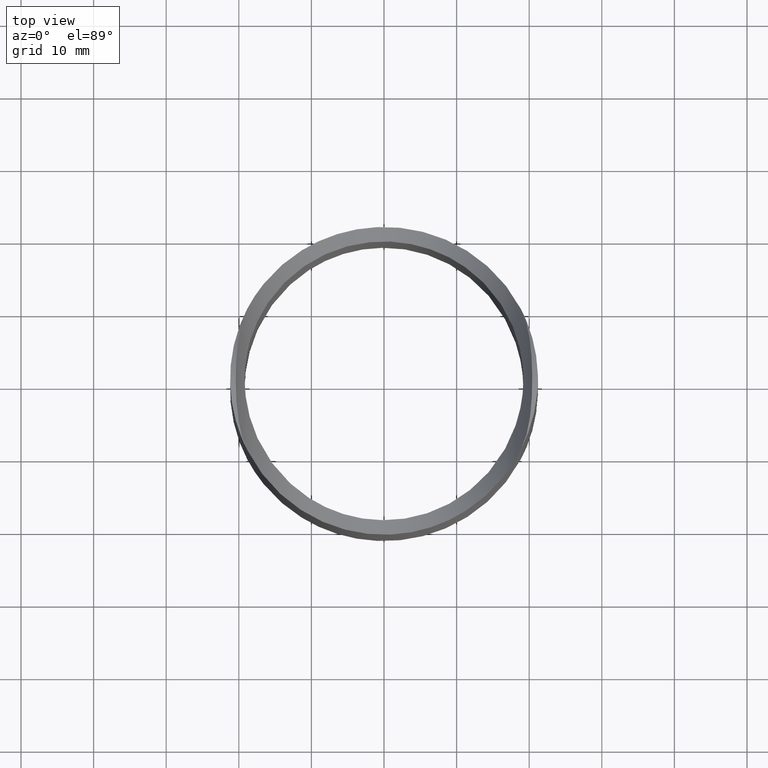
[diagram: clean part render]
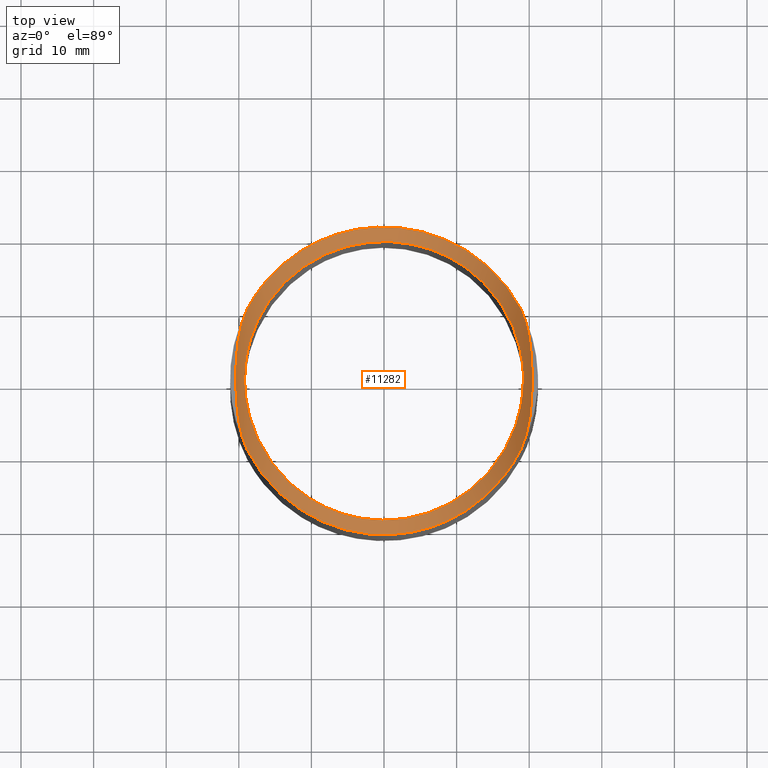
[diagram: same view with one face highlighted and labeled with its STEP entity id]
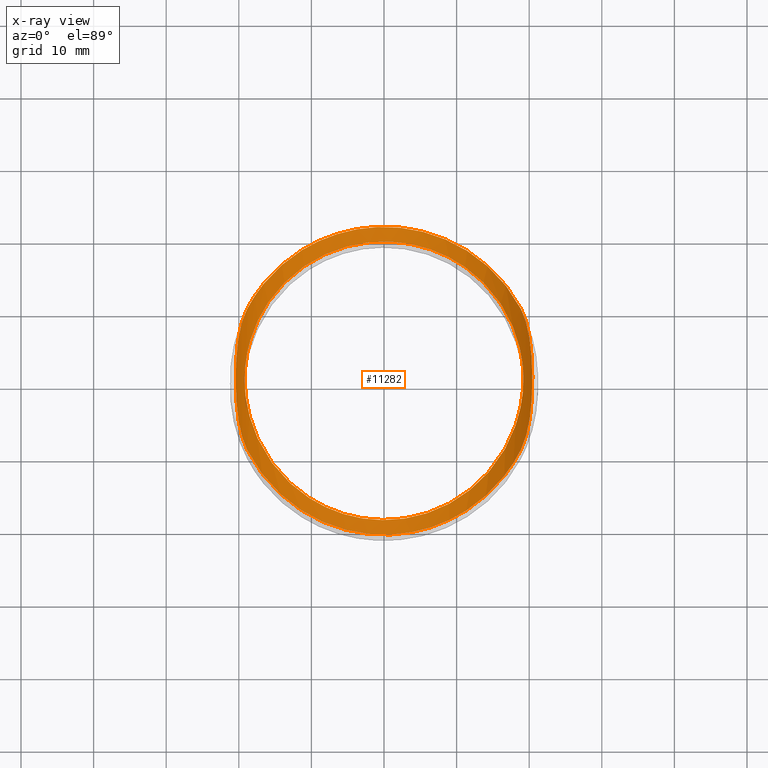
[diagram: x-ray of the same camera — body ghosted, the highlighted face saturated]
A machine part, top view. The second image highlights one B-rep face of the part: STEP entity #11282.
The next image is the same camera in x-ray: the body ghosted, the highlighted face saturated — about 0% of this face is hidden behind the body in this view.
In plain terms, the highlighted cylindrical surface (partial cylindrical patch) has radius 21.2 mm, axis along (-0, 1, -0).
Its self-contained STEP definition (entity closure, byte-faithful):
#275 = CARTESIAN_POINT ( 'NONE',  ( 19.71056696866369151, 7.336897052057295809, 38.38939420894264032 ) ) ;
#337 = CARTESIAN_POINT ( 'NONE',  ( 19.20000000000000284, 0.000000000000000000, 37.21111797830232604 ) ) ;
#381 = CARTESIAN_POINT ( 'NONE',  ( 17.19296700203068795, -8.566131912015483962, 33.78834553073281910 ) ) ;
#407 = EDGE_LOOP ( 'NONE', ( #3960 ) ) ;
#427 = CARTESIAN_POINT ( 'NONE',  ( 17.91115840603067255, -6.941481756126495206, 34.85067736368570479 ) ) ;
#507 = CARTESIAN_POINT ( 'NONE',  ( -15.67803153170230246, -11.09847307753546630, 31.92139895677011197 ) ) ;
#548 = CARTESIAN_POINT ( 'NONE',  ( 10.64677686720037286, -15.98933728070450044, 27.85803417098272305 ) ) ;
#599 = CARTESIAN_POINT ( 'NONE',  ( 0.7433319518265338877, -19.19778070975139528, 25.00200992153247981 ) ) ;
#642 = CARTESIAN_POINT ( 'NONE',  ( -18.63179064665984086, -4.680354246637869586, 36.08166199968749766 ) ) ;
#687 = CARTESIAN_POINT ( 'NONE',  ( 15.34714830805693708, 11.55184783462138753, 31.56542461268523070 ) ) ;
#730 = CARTESIAN_POINT ( 'NONE',  ( 19.19999999999999574, 0.3490227224017047325, 37.21111797830232604 ) ) ;
#745 = CARTESIAN_POINT ( 'NONE',  ( -18.99142785206602113, 9.427715610654040290, 36.77228438934596966 ) ) ;
#782 = CARTESIAN_POINT ( 'NONE',  ( 18.10457226352765403, 6.421706227417328883, 35.16370882187908364 ) ) ;
#793 = CARTESIAN_POINT ( 'NONE',  ( -20.20840888386870660, 4.483300682589212549, 39.78129634034976192 ) ) ;
#824 = CARTESIAN_POINT ( 'NONE',  ( 10.06396289217453521, 16.36321880414065433, 27.53096403281191584 ) ) ;
#836 = CARTESIAN_POINT ( 'NONE',  ( -19.96023696848529028, -6.159350922172873055, 39.05286593428640174 ) ) ;
#871 = CARTESIAN_POINT ( 'NONE',  ( 7.208878613172669425, 17.79834022154434336, 26.26063975332181855 ) ) ;
#885 = VERTEX_POINT ( 'NONE', #3470 ) ;
#936 = CARTESIAN_POINT ( 'NONE',  ( -20.02854671388581309, -5.752880836942012799, 39.24791982289676895 ) ) ;
#1020 = CARTESIAN_POINT ( 'NONE',  ( -20.14661404502265185, -4.921180317762946288, 39.59787573730439902 ) ) ;
#1050 = B_SPLINE_CURVE_WITH_KNOTS ( 'NONE', 3,
 ( #11966, #5555, #5605, #7549, #1243, #2346, #9645, #10707, #12933, #12842, #6559, #6644, #1390, #2482, #7593, #2390, #3518, #12885, #11918, #6603, #1297, #8642, #275, #9695, #3428, #4471, #11066, #13191 ),
 .UNSPECIFIED., .F., .F.,
 ( 4, 2, 2, 2, 2, 2, 2, 2, 2, 2, 2, 2, 2, 4 ),
 ( 0.02396826204392869808, 0.02668679620115640277, 0.02804606327977025512, 0.02940533035838410747, 0.03212386451561180523, 0.03348313159422565410, 0.03484239867283949604, 0.03620166575145334492, 0.03756093283006718686, 0.04027946698729487074, 0.04163873406590871962, 0.04299800114452255462, 0.04435726822313639656, 0.04571653530175023850 ),
 .UNSPECIFIED. ) ;
#1092 = CARTESIAN_POINT ( 'NONE',  ( 18.83499937240519273, 9.730508652763015576, 36.46949134723699615 ) ) ;
#1243 = CARTESIAN_POINT ( 'NONE',  ( 19.80042045556458419, -6.955732664400975374, 38.62130685013785580 ) ) ;
#1269 = DIRECTION ( 'NONE',  ( 0.000000000000000000, 0.000000000000000000, 1.000000000000000000 ) ) ;
#1297 = CARTESIAN_POINT ( 'NONE',  ( 19.96003588648376237, 6.160517473762729956, 39.05229638140252746 ) ) ;
#1320 = CARTESIAN_POINT ( 'NONE',  ( -6.888638245203861550E-15, -21.19999999999999929, 46.19999999999999574 ) ) ;
#1390 = CARTESIAN_POINT ( 'NONE',  ( 20.41935579464661998, -0.4553107481924930644, 40.50000798845297112 ) ) ;
#1535 = CARTESIAN_POINT ( 'NONE',  ( -18.91461802903754474, 3.314564675375174740, 36.62448624184041535 ) ) ;
#1579 = CARTESIAN_POINT ( 'NONE',  ( -18.09347301264858388, -6.452912811912915991, 35.14547507224334311 ) ) ;
#1624 = CARTESIAN_POINT ( 'NONE',  ( 12.11583388925274463, -14.90660930377096705, 28.79413393938108001 ) ) ;
#1666 = CARTESIAN_POINT ( 'NONE',  ( -10.58062860615426182, -16.03342596783360818, 27.81959257838934363 ) ) ;
#1706 = CARTESIAN_POINT ( 'NONE',  ( -19.19273037613744748, 0.6313044509750561639, 37.19551227889626688 ) ) ;
#1757 = CARTESIAN_POINT ( 'NONE',  ( -16.65739973868151225, 9.566076196768829476, 33.07829986478184026 ) ) ;
#1802 = CARTESIAN_POINT ( 'NONE',  ( 6.593138562901279975, 18.03550302574578268, 26.04865905710856566 ) ) ;
#1901 = CARTESIAN_POINT ( 'NONE',  ( -8.182210647319426045, 17.37230888927754435, 26.64000520751988077 ) ) ;
#1946 = CARTESIAN_POINT ( 'NONE',  ( -10.65911185777683023, 15.98115914200133680, 27.86516872660411082 ) ) ;
#2015 = EDGE_CURVE ( 'NONE', #885, #11410, #1050, .T. ) ;
#2346 = CARTESIAN_POINT ( 'NONE',  ( 19.96068147876746934, -6.157164501021399339, 39.05406164453563633 ) ) ;
#2390 = CARTESIAN_POINT ( 'NONE',  ( 20.38726801568120806, 1.825606875754207881, 40.38608953284843750 ) ) ;
#2482 = CARTESIAN_POINT ( 'NONE',  ( 20.41935133356041732, 0.4557934958960200844, 40.49999200731324578 ) ) ;
#2493 = CARTESIAN_POINT ( 'NONE',  ( 19.16216525528440684, -1.378188636715932169, 37.12926310969862698 ) ) ;
#2509 = ORIENTED_EDGE ( 'NONE', *, *, #10356, .T. ) ;
#2618 = CARTESIAN_POINT ( 'NONE',  ( -18.49689606922446217, 5.184314744798502517, 35.83481015033861183 ) ) ;
#2660 = CARTESIAN_POINT ( 'NONE',  ( 8.169117891187502423, -17.37844731876491977, 26.63455209938705437 ) ) ;
#2702 = CARTESIAN_POINT ( 'NONE',  ( -19.15842051168932869, -1.433932924298476852, 37.12121907411343358 ) ) ;
#2751 = CARTESIAN_POINT ( 'NONE',  ( -7.499712883759797499, -17.67763751301265174, 26.36832621775003815 ) ) ;
#2798 = CARTESIAN_POINT ( 'NONE',  ( -5.321300936734706610, -18.45986871652485561, 25.66811167232075874 ) ) ;
#2840 = CARTESIAN_POINT ( 'NONE',  ( -11.65467948375183305, 15.27031627863632401, 28.48133330209328307 ) ) ;
#2876 = CARTESIAN_POINT ( 'NONE',  ( 16.65531608716842626, 9.622605241787768549, 33.04704477850177113 ) ) ;
#2890 = CARTESIAN_POINT ( 'NONE',  ( -19.39343109686160460, 8.421937282544423198, 37.63081931822470239 ) ) ;
#2925 = CARTESIAN_POINT ( 'NONE',  ( -1.424156016817712089, 19.15931440983921163, 25.03686437662754827 ) ) ;
#2929 = VERTEX_POINT ( 'NONE', #10453 ) ;
#2966 = CARTESIAN_POINT ( 'NONE',  ( -16.36227788616431766, 10.06219331673604067, 32.71110928679083685 ) ) ;
#2974 =( BOUNDED_CURVE ( )  B_SPLINE_CURVE ( 3, ( #10110, #11329, #12335, #11284 ),
 .UNSPECIFIED., .F., .T. ) 
 B_SPLINE_CURVE_WITH_KNOTS ( ( 4, 4 ),
 ( 2.047650156017112977, 4.235535151162473255 ),
 .UNSPECIFIED. ) 
 CURVE ( )  GEOMETRIC_REPRESENTATION_ITEM ( )  RATIONAL_B_SPLINE_CURVE ( ( 1.000000000000000000, 0.6393241714705079071, 0.6393241714705079071, 1.000000000000000000 ) ) 
 REPRESENTATION_ITEM ( '' )  );
#2980 = CARTESIAN_POINT ( 'NONE',  ( -19.14879535602255700, -9.123104932626860730, 37.07689506737223439 ) ) ;
#3009 = CARTESIAN_POINT ( 'NONE',  ( 17.20359048519079082, 8.606024147678814629, 33.78335582246248237 ) ) ;
#3115 = CARTESIAN_POINT ( 'NONE',  ( -18.83499937240564748, -9.730508652762148714, 36.46949134723785590 ) ) ;
#3265 = CYLINDRICAL_SURFACE ( 'NONE', #12745, 21.20000000000000284 ) ;
#3356 = DIRECTION ( 'NONE',  ( -0.000000000000000000, 1.000000000000000000, -0.000000000000000000 ) ) ;
#3428 = CARTESIAN_POINT ( 'NONE',  ( 19.39254186178201778, 8.424196625842593988, 37.62890960961328801 ) ) ;
#3432 = FACE_OUTER_BOUND ( 'NONE', #8159, .T. ) ;
#3470 = CARTESIAN_POINT ( 'NONE',  ( 18.83499937240519273, -9.730508652762148714, 36.46949134723698904 ) ) ;
#3518 = CARTESIAN_POINT ( 'NONE',  ( 20.36759173196930206, 2.283090950394319751, 40.31696312772430701 ) ) ;
#3620 = CARTESIAN_POINT ( 'NONE',  ( 18.11928811322277610, -6.379831090624921153, 35.18799378958626534 ) ) ;
#3660 = CARTESIAN_POINT ( 'NONE',  ( 6.692009581848362032, -18.04260793388171891, 26.04369015657987063 ) ) ;
#3698 = CARTESIAN_POINT ( 'NONE',  ( -17.46097407808106539, 8.006752749065007890, 34.16961238400870826 ) ) ;
#3745 = CARTESIAN_POINT ( 'NONE',  ( 3.789666982896676029, -18.82533588385401657, 25.33873726790161385 ) ) ;
#3791 = CARTESIAN_POINT ( 'NONE',  ( -12.99320831105823437, -14.18427761042544510, 29.41395527214996264 ) ) ;
#3801 = CARTESIAN_POINT ( 'NONE',  ( -19.71213480845465682, 7.330687588287029932, 38.39333894883566956 ) ) ;
#3830 = CARTESIAN_POINT ( 'NONE',  ( -0.2820824081242938042, -19.20097031812725774, 24.99912122211958021 ) ) ;
#3875 = CARTESIAN_POINT ( 'NONE',  ( -3.460241842590369821, 18.88874107712624806, 25.28149223259232770 ) ) ;
#3937 = CARTESIAN_POINT ( 'NONE',  ( -19.80185378735174950, 6.948910406392233341, 38.62512568007186076 ) ) ;
#3960 = ORIENTED_EDGE ( 'NONE', *, *, #12065, .T. ) ;
#3968 = CARTESIAN_POINT ( 'NONE',  ( 13.00949465222950430, 14.16943162346804996, 29.42653743211569406 ) ) ;
#4013 = CARTESIAN_POINT ( 'NONE',  ( 1.312988904934133227, 19.16757156322099931, 25.02938702764060963 ) ) ;
#4028 = CARTESIAN_POINT ( 'NONE',  ( -19.70941595299812477, -7.341808134765035909, 38.38641665143476445 ) ) ;
#4064 = CARTESIAN_POINT ( 'NONE',  ( -9.322606805230245541, 16.78772625623479087, 27.15735897326290882 ) ) ;
#4471 = CARTESIAN_POINT ( 'NONE',  ( 19.13619414648809425, 9.099941907964108623, 37.07090673018057458 ) ) ;
#4577 = CARTESIAN_POINT ( 'NONE',  ( 19.01128167798046320, -2.705567430266663465, 36.81785042456776580 ) ) ;
#4667 = CARTESIAN_POINT ( 'NONE',  ( 18.84686994629927170, -3.679419948413719332, 36.49144117914707408 ) ) ;
#4712 = CARTESIAN_POINT ( 'NONE',  ( 14.68253438281444367, -12.42803938818136622, 30.86938051930040672 ) ) ;
#4758 = CARTESIAN_POINT ( 'NONE',  ( -19.01744062171366423, 2.661966636010332454, 36.83035800488135436 ) ) ;
#4805 = CARTESIAN_POINT ( 'NONE',  ( 13.45799223950704970, -13.70659292514178773, 29.81056369875700796 ) ) ;
#4845 = CARTESIAN_POINT ( 'NONE',  ( 2.440102494965027180, -19.04736305706262556, 25.13814379396058030 ) ) ;
#4892 = CARTESIAN_POINT ( 'NONE',  ( -19.06088155016499641, 2.331588205577292960, 36.91941270427329158 ) ) ;
#4930 = ORIENTED_EDGE ( 'NONE', *, *, #10021, .T. ) ;
#4940 = CARTESIAN_POINT ( 'NONE',  ( 19.01511626616451878, 2.743069616243392961, 36.82484527153221876 ) ) ;
#4980 = CARTESIAN_POINT ( 'NONE',  ( 3.364464735285408015, 18.91496223898500162, 25.25788775945571629 ) ) ;
#5031 = CARTESIAN_POINT ( 'NONE',  ( 10.59320340654816661, 16.02518520412173331, 27.82678819635870937 ) ) ;
#5080 = CARTESIAN_POINT ( 'NONE',  ( -13.04020983730995198, 14.10517047600934326, 29.47539097498081873 ) ) ;
#5131 = CARTESIAN_POINT ( 'NONE',  ( 17.89575979321478627, 6.980585629207756604, 34.82652533405080675 ) ) ;
#5190 = CARTESIAN_POINT ( 'NONE',  ( -20.41915062278570758, -0.9233763040421101298, 40.49927299312007278 ) ) ;
#5555 = CARTESIAN_POINT ( 'NONE',  ( 19.15172409592000946, -9.117435875016594693, 37.08256412498255372 ) ) ;
#5605 = CARTESIAN_POINT ( 'NONE',  ( 19.40326564832767531, -8.442923917428240443, 37.64181074995710929 ) ) ;
#5654 = CARTESIAN_POINT ( 'NONE',  ( 18.64699877288243357, -4.619522538329482231, 36.10981063771146893 ) ) ;
#5742 = CARTESIAN_POINT ( 'NONE',  ( 15.39991665134729715, -11.52413184714195715, 31.59800825546497194 ) ) ;
#5782 = CARTESIAN_POINT ( 'NONE',  ( 11.64113529176941064, -15.28059990493830966, 28.47246386968818754 ) ) ;
#5825 = CARTESIAN_POINT ( 'NONE',  ( -15.33258299572058547, -11.57116703053286777, 31.55015891799237693 ) ) ;
#5868 = CARTESIAN_POINT ( 'NONE',  ( -7.198569797931736680, -17.80249585910715737, 26.25692965029836401 ) ) ;
#5913 = CARTESIAN_POINT ( 'NONE',  ( 8.461257111318923663, -17.23803310467494043, 26.75918803841609162 ) ) ;
#5958 = CARTESIAN_POINT ( 'NONE',  ( -19.00922260648843931, -2.784007189479659417, 36.81283879439962448 ) ) ;
#5997 = CARTESIAN_POINT ( 'NONE',  ( 5.330123049953487069, 18.45732410971078963, 25.67040011375621233 ) ) ;
#6044 = CARTESIAN_POINT ( 'NONE',  ( -2.782897158279222793, 19.00034990452467554, 25.18065833022477307 ) ) ;
#6085 = CARTESIAN_POINT ( 'NONE',  ( -12.13030572889498337, 14.89491825025899274, 28.80415846920976719 ) ) ;
#6097 = CARTESIAN_POINT ( 'NONE',  ( -20.39452910575712963, -1.829819687933209593, 40.40869199211577723 ) ) ;
#6128 = CARTESIAN_POINT ( 'NONE',  ( -5.450650170352565382, 18.45984008691819866, 25.66832090573933556 ) ) ;
#6172 = CARTESIAN_POINT ( 'NONE',  ( 18.64047274022156842, 4.645995901079147394, 36.09769699879559113 ) ) ;
#6559 = CARTESIAN_POINT ( 'NONE',  ( 20.38750066630083779, -1.818831054590076102, 40.38690875147304382 ) ) ;
#6603 = CARTESIAN_POINT ( 'NONE',  ( 20.02950896874066089, 5.747106174880044271, 39.25067135104398375 ) ) ;
#6644 = CARTESIAN_POINT ( 'NONE',  ( 20.41309973981402948, -0.9102380202921167562, 40.47745054241361373 ) ) ;
#6681 = VERTEX_POINT ( 'NONE', #337 ) ;
#6758 = CARTESIAN_POINT ( 'NONE',  ( 16.34918993274999366, -10.08338983018882651, 32.69526425705247163 ) ) ;
#6840 = CARTESIAN_POINT ( 'NONE',  ( -1.311374818161326283, -19.15824865959787715, 25.03780640915376310 ) ) ;
#6889 = CARTESIAN_POINT ( 'NONE',  ( -6.270452661708513453, -18.15026646057652826, 25.94586230156492590 ) ) ;
#6915 = CARTESIAN_POINT ( 'NONE',  ( -18.83499937240520694, 9.730508652763015576, 36.46949134723698904 ) ) ;
#6930 = CARTESIAN_POINT ( 'NONE',  ( -4.675820080104302612, -18.63412284638750904, 25.51119071109478043 ) ) ;
#6973 = CARTESIAN_POINT ( 'NONE',  ( -18.46738706875887104, -5.288616479782785262, 35.78213544480090036 ) ) ;
#7001 = CARTESIAN_POINT ( 'NONE',  ( 18.83499937240519273, 9.730508652763015576, 36.46949134723699615 ) ) ;
#7015 = CARTESIAN_POINT ( 'NONE',  ( -1.656754352060736846, -19.13149826019524014, 25.06202489934773681 ) ) ;
#7060 = CARTESIAN_POINT ( 'NONE',  ( 19.19045485382234517, 0.6971960827792591520, 37.19065048501580151 ) ) ;
#7075 = CARTESIAN_POINT ( 'NONE',  ( -18.83499937240520694, 9.730508652763015576, 36.46949134723698904 ) ) ;
#7104 = CARTESIAN_POINT ( 'NONE',  ( -9.044281764903576715, 16.93940487217225055, 27.02348275130081134 ) ) ;
#7145 = CARTESIAN_POINT ( 'NONE',  ( 7.510638415796931255, 17.67301004236096773, 26.37245162406040677 ) ) ;
#7192 = CARTESIAN_POINT ( 'NONE',  ( 6.279156697292871847, 18.14725729760509765, 25.94855901484863381 ) ) ;
#7247 = CARTESIAN_POINT ( 'NONE',  ( -20.28012374499805404, -3.626657373133307605, 40.02129787206074951 ) ) ;
#7257 = B_SPLINE_CURVE_WITH_KNOTS ( 'NONE', 3,
 ( #7075, #745, #9148, #2890, #8149, #3801, #3937, #7976, #12198, #793, #13257, #8290, #13427, #5190, #6097, #8339, #7247, #11466, #1020, #936, #836, #12513, #4028, #8199, #2980, #3115 ),
 .UNSPECIFIED., .F., .F.,
 ( 4, 2, 2, 2, 2, 2, 2, 2, 2, 2, 2, 2, 4 ),
 ( 0.09355035226203879672, 0.09490895155462270028, 0.09626755084720660383, 0.09762615013979049350, 0.09898474943237439705, 0.1017019480175422042, 0.1044191466027100113, 0.1071363451878778184, 0.1084949444804617219, 0.1098535437730456255, 0.1112121430656295429, 0.1125707423582134464, 0.1152879409433812535 ),
 .UNSPECIFIED. ) ;
#7549 = CARTESIAN_POINT ( 'NONE',  ( 19.71003943418751447, -7.339090767664419701, 38.38804276973090879 ) ) ;
#7593 = CARTESIAN_POINT ( 'NONE',  ( 20.41309228978992607, 0.9119704057492541427, 40.47742057881313116 ) ) ;
#7829 = CARTESIAN_POINT ( 'NONE',  ( -19.19768964111686316, -0.7507734128340660673, 37.20618325479942001 ) ) ;
#7875 = CARTESIAN_POINT ( 'NONE',  ( -14.21628077223434694, -12.91826843625113597, 30.46386162490987459 ) ) ;
#7918 = CARTESIAN_POINT ( 'NONE',  ( -3.358304395327570635, -18.91601488855650004, 25.25693635585946595 ) ) ;
#7960 = CARTESIAN_POINT ( 'NONE',  ( -6.584345212806402614, -18.03869906805410750, 26.04579795111111196 ) ) ;
#7976 = CARTESIAN_POINT ( 'NONE',  ( -19.96040817455402916, 6.158204083628333159, 39.05337563016215796 ) ) ;
#8011 = CARTESIAN_POINT ( 'NONE',  ( -19.20100689606107025, 0.2829686306483954472, 37.21326861544537223 ) ) ;
#8055 = CARTESIAN_POINT ( 'NONE',  ( 15.69229226241624175, 11.07837916626817076, 31.93704414202763786 ) ) ;
#8149 = CARTESIAN_POINT ( 'NONE',  ( -19.50791985418022279, 8.067202082604763902, 37.89618892090280866 ) ) ;
#8159 = EDGE_LOOP ( 'NONE', ( #12157, #12177, #4930, #2509 ) ) ;
#8188 = CARTESIAN_POINT ( 'NONE',  ( 14.23217492546610075, 12.90078031750657495, 30.47822540879736053 ) ) ;
#8199 = CARTESIAN_POINT ( 'NONE',  ( -19.40076727758896880, -8.450956954247835995, 37.63595441079840498 ) ) ;
#8235 = CARTESIAN_POINT ( 'NONE',  ( 14.61769633785418421, 12.46206657653640804, 30.83677404544288692 ) ) ;
#8290 = CARTESIAN_POINT ( 'NONE',  ( -20.39445018352611072, 1.827808946895917552, 40.40848246715675884 ) ) ;
#8339 = CARTESIAN_POINT ( 'NONE',  ( -20.31426261368220665, -3.180146838455824465, 40.13536885422588796 ) ) ;
#8642 = CARTESIAN_POINT ( 'NONE',  ( 19.80057605829737000, 6.954820852622733973, 38.62174905610720543 ) ) ;
#8670 = FACE_BOUND ( 'NONE', #407, .T. ) ;
#8740 = CARTESIAN_POINT ( 'NONE',  ( 19.19999999999999574, -0.6980454448033969195, 37.21111797830233314 ) ) ;
#8785 = CARTESIAN_POINT ( 'NONE',  ( 17.44715800060077981, -8.036817910008428711, 34.14954783208732891 ) ) ;
#8868 = CARTESIAN_POINT ( 'NONE',  ( -18.65612771096560252, 4.582949161454085818, 36.12672871361409221 ) ) ;
#8914 = CARTESIAN_POINT ( 'NONE',  ( -17.92305133272228446, 6.910711704642355180, 34.86950694492877290 ) ) ;
#8947 = CARTESIAN_POINT ( 'NONE',  ( 9.820265530855843750, 27.18000819149151326, 19.01999180850849314 ) ) ;
#8962 = CARTESIAN_POINT ( 'NONE',  ( -16.64054650988334316, -9.647762502245493366, 33.02848931612182071 ) ) ;
#9009 = CARTESIAN_POINT ( 'NONE',  ( 9.310254919828347298, -16.79457926201056850, 27.15131669843542639 ) ) ;
#9050 = CARTESIAN_POINT ( 'NONE',  ( -12.09154761544727386, -14.96516876392829865, 28.74632442703109447 ) ) ;
#9090 = CARTESIAN_POINT ( 'NONE',  ( 19.19999999999999574, 8.944667923005411581E-16, 37.21111797830233314 ) ) ;
#9139 = CARTESIAN_POINT ( 'NONE',  ( -3.796836483337462820, 18.82388742863526332, 25.34004440739082398 ) ) ;
#9148 = CARTESIAN_POINT ( 'NONE',  ( -19.13468592810932734, 9.103832718976283545, 37.06764971662580166 ) ) ;
#9228 = CARTESIAN_POINT ( 'NONE',  ( 12.10729353764917882, 14.95270945845004462, 28.75703795884800940 ) ) ;
#9276 = CARTESIAN_POINT ( 'NONE',  ( 8.398654318301906230, 17.27780365447571143, 26.72416724003959843 ) ) ;
#9645 = CARTESIAN_POINT ( 'NONE',  ( 20.02951429400183869, -5.746969042468538902, 39.25069710608696028 ) ) ;
#9695 = CARTESIAN_POINT ( 'NONE',  ( 19.50654786055389067, 8.071587260521445373, 37.89297865577587032 ) ) ;
#9792 = CARTESIAN_POINT ( 'NONE',  ( 19.05529986142776622, -2.376455867120495391, 36.90794648949724888 ) ) ;
#9916 = CARTESIAN_POINT ( 'NONE',  ( 10.12713739048889039, -16.32409401206496469, 27.56525242842998935 ) ) ;
#9972 = CARTESIAN_POINT ( 'NONE',  ( -18.13040550415289687, 6.348281643390495610, 35.20633268330367116 ) ) ;
#10016 = CARTESIAN_POINT ( 'NONE',  ( -8.386241066589549931, -17.28378448992772576, 26.71885849980300165 ) ) ;
#10021 = EDGE_CURVE ( 'NONE', #11410, #2929, #11721, .T. ) ;
#10054 = CARTESIAN_POINT ( 'NONE',  ( 9.031708078415519481, -16.94611773852637526, 27.01755253321952566 ) ) ;
#10100 = CARTESIAN_POINT ( 'NONE',  ( -19.15757687251268138, 1.321625126386668514, 37.12096113102361983 ) ) ;
#10110 = CARTESIAN_POINT ( 'NONE',  ( -18.83499937240564748, -9.730508652762148714, 36.46949134723785590 ) ) ;
#10146 = CARTESIAN_POINT ( 'NONE',  ( -8.474572113382082605, 17.23148564580044706, 26.76499359589217519 ) ) ;
#10230 = CARTESIAN_POINT ( 'NONE',  ( -2.443643506288524669, 19.04692872008507720, 25.13853664016795264 ) ) ;
#10282 = CARTESIAN_POINT ( 'NONE',  ( -6.700160948188012888, 18.03992347028209053, 26.04610903543233391 ) ) ;
#10327 = CARTESIAN_POINT ( 'NONE',  ( -14.69639531022576229, 12.41154362510559039, 30.88276585305338529 ) ) ;
#10356 = EDGE_CURVE ( 'NONE', #2929, #12368, #7257, .T. ) ;
#10453 = CARTESIAN_POINT ( 'NONE',  ( -18.83499937240520694, 9.730508652763015576, 36.46949134723698904 ) ) ;
#10594 = B_SPLINE_CURVE_WITH_KNOTS ( 'NONE', 3,
 ( #10814, #8740, #2493, #9792, #4577, #11928, #4667, #5654, #12994, #3620, #427, #8785, #381, #12017, #6758, #5742, #4712, #4805, #12056, #1624, #5782, #548, #9916, #9009, #10054, #5913, #2660, #3660, #13163, #3745, #12099, #11083, #4845, #12141, #599, #3830, #13118, #6840, #7015, #11040, #7918, #6930, #2798, #6889, #7960, #5868, #2751, #10016, #13202, #12186, #1666, #9050, #3791, #7875, #13246, #5825, #507, #8962, #10998, #11134, #1579, #6973, #642, #12231, #5958, #2702, #7829, #8011, #1706, #10100, #11180, #4892, #4758, #1535, #13290, #8868, #2618, #9972, #8914, #3698, #13331, #1757, #2966, #12462, #10327, #12407, #5080, #6085, #2840, #1946, #11224, #4064, #7104, #10146, #1901, #10282, #6128, #9139, #3875, #6044, #10230, #2925, #13459, #13416, #4013, #11408, #4980, #11362, #5997, #7192, #1802, #871, #7145, #9276, #13369, #824, #5031, #9228, #3968, #8188, #8235, #687, #8055, #2876, #3009, #5131, #782, #11270, #6172, #12277, #4940, #13506, #12366, #7060, #730, #9090 ),
 .UNSPECIFIED., .T., .F.,
 ( 4, 2, 2, 2, 2, 2, 2, 2, 2, 2, 2, 2, 2, 2, 2, 2, 2, 2, 2, 2, 2, 2, 2, 2, 2, 2, 2, 2, 2, 2, 2, 2, 2, 2, 2, 2, 2, 2, 2, 2, 2, 2, 2, 2, 2, 2, 2, 2, 2, 2, 2, 2, 2, 2, 2, 2, 2, 2, 2, 2, 2, 2, 2, 2, 2, 2, 2, 4 ),
 ( 0.000000000000000000, 0.002054033569492797785, 0.003081050354239195811, 0.004108067138985593836, 0.006162100708478395091, 0.008216134277971196345, 0.01027016784746399847, 0.01232420141695679885, 0.01643226855594241698, 0.01848630212543522777, 0.02054033569492804204, 0.02259436926442085283, 0.02362138604916726517, 0.02464840283391367404, 0.02875646997289931645, 0.02978348675764572531, 0.03081050354239213418, 0.03286453711188495191, 0.03389155389663135731, 0.03491857068137776965, 0.03697260425087057351, 0.03902663782036339124, 0.04005365460510979664, 0.04108067138985620204, 0.04313470495934901977, 0.04518873852884182363, 0.04929680566782743828, 0.05135083923732024214, 0.05340487280681304599, 0.05751293994579867452, 0.05956697351529147838, 0.06162100708478428224, 0.06367504065427709303, 0.06572907422376988995, 0.06675609100851630229, 0.06778310779326268687, 0.06881012457800908533, 0.06983714136275549766, 0.07189117493224829458, 0.07394520850174110538, 0.07599924207123393005, 0.07805327564072674085, 0.08216134277971236244, 0.08421537634920517323, 0.08626940991869799791, 0.08832344348819079483, 0.08935046027293720716, 0.09037747705768359174, 0.09448554419666919946, 0.09551256098141561179, 0.09653957776616201025, 0.09859361133565480717, 0.1006476449051475902, 0.1027016784746404010, 0.1047557120441331979, 0.1057827288288795964, 0.1068097456136259810, 0.1088637791831187918, 0.1109178127526115887, 0.1150258798915971825, 0.1170799134610899794, 0.1191339470305827902, 0.1232420141695683841, 0.1252960477390611949, 0.1273500813085540195, 0.1294041148780468442, 0.1304311316627932149, 0.1314581484475396411 ),
 .UNSPECIFIED. ) ;
#10707 = CARTESIAN_POINT ( 'NONE',  ( 20.20692460165660265, -4.494502267904833204, 39.77682225040807396 ) ) ;
#10814 = CARTESIAN_POINT ( 'NONE',  ( 19.19999999999999574, 8.944667923005411581E-16, 37.21111797830233314 ) ) ;
#10998 = CARTESIAN_POINT ( 'NONE',  ( -17.18954555117544913, -8.633893503348447851, 33.76384205991954701 ) ) ;
#11040 = CARTESIAN_POINT ( 'NONE',  ( -2.686278404013876742, -19.02367343569140701, 25.15958142784235108 ) ) ;
#11066 = CARTESIAN_POINT ( 'NONE',  ( 18.99298712199221129, 9.424697387339181276, 36.77530261266083755 ) ) ;
#11083 = CARTESIAN_POINT ( 'NONE',  ( 2.778085530669782699, -19.00102707361032017, 25.18004603028895261 ) ) ;
#11134 = CARTESIAN_POINT ( 'NONE',  ( -17.88379602546201497, -7.011133149530372144, 34.80770151105099330 ) ) ;
#11180 = CARTESIAN_POINT ( 'NONE',  ( -19.13094863911730314, 1.661419031208812624, 37.06472166869123441 ) ) ;
#11224 = CARTESIAN_POINT ( 'NONE',  ( -10.13918899252689698, 16.31661265614350143, 27.57180775689159447 ) ) ;
#11259 = CARTESIAN_POINT ( 'NONE',  ( -18.83499937240564748, -9.730508652762148714, 36.46949134723785590 ) ) ;
#11270 = CARTESIAN_POINT ( 'NONE',  ( 18.47647750869282035, 5.256769596179180049, 35.79831558427515859 ) ) ;
#11282 = ADVANCED_FACE ( 'NONE', ( #8670, #3432 ), #3265, .F. ) ;
#11284 = CARTESIAN_POINT ( 'NONE',  ( 18.83499937240519273, -9.730508652762148714, 36.46949134723698904 ) ) ;
#11329 = CARTESIAN_POINT ( 'NONE',  ( -9.820265530856495673, -27.18000819149221314, 19.01999180850778970 ) ) ;
#11362 = CARTESIAN_POINT ( 'NONE',  ( 4.684179666416928178, 18.63206591631572451, 25.51304399136355272 ) ) ;
#11408 = CARTESIAN_POINT ( 'NONE',  ( 2.690703496787358429, 19.02313996657898798, 25.16006396914933418 ) ) ;
#11410 = VERTEX_POINT ( 'NONE', #1092 ) ;
#11466 = CARTESIAN_POINT ( 'NONE',  ( -20.19636494902344026, -4.495950607000952282, 39.75278184454006691 ) ) ;
#11670 = EDGE_CURVE ( 'NONE', #12368, #885, #2974, .T. ) ;
#11721 =( BOUNDED_CURVE ( )  B_SPLINE_CURVE ( 3, ( #7001, #8947, #13188, #6915 ),
 .UNSPECIFIED., .F., .T. ) 
 B_SPLINE_CURVE_WITH_KNOTS ( ( 4, 4 ),
 ( 2.047650156017158718, 4.235535151162427070 ),
 .UNSPECIFIED. ) 
 CURVE ( )  GEOMETRIC_REPRESENTATION_ITEM ( )  RATIONAL_B_SPLINE_CURVE ( ( 1.000000000000000000, 0.6393241714705351075, 0.6393241714705351075, 1.000000000000000000 ) ) 
 REPRESENTATION_ITEM ( '' )  );
#11918 = CARTESIAN_POINT ( 'NONE',  ( 20.20728437970062430, 4.491762967691094843, 39.77790915681181616 ) ) ;
#11928 = CARTESIAN_POINT ( 'NONE',  ( 18.90706247313660882, -3.357367241775077726, 36.60955942971293808 ) ) ;
#11966 = CARTESIAN_POINT ( 'NONE',  ( 18.83499937240519273, -9.730508652762148714, 36.46949134723698904 ) ) ;
#12017 = CARTESIAN_POINT ( 'NONE',  ( 16.64426761692455159, -9.588800016851067198, 33.06167299487513134 ) ) ;
#12056 = CARTESIAN_POINT ( 'NONE',  ( 13.02347594845947754, -14.12053490442673187, 29.46241718849259072 ) ) ;
#12065 = EDGE_CURVE ( 'NONE', #6681, #6681, #10594, .T. ) ;
#12099 = CARTESIAN_POINT ( 'NONE',  ( 3.452516812799240942, -18.89012749361760868, 25.28024016003466556 ) ) ;
#12141 = CARTESIAN_POINT ( 'NONE',  ( 1.423866269770416970, -19.15925790054939881, 25.03691532490893934 ) ) ;
#12157 = ORIENTED_EDGE ( 'NONE', *, *, #11670, .T. ) ;
#12177 = ORIENTED_EDGE ( 'NONE', *, *, #2015, .T. ) ;
#12186 = CARTESIAN_POINT ( 'NONE',  ( -10.05073706922911114, -16.37132824232326911, 27.52385291081796126 ) ) ;
#12198 = CARTESIAN_POINT ( 'NONE',  ( -20.02939959712857032, 5.748138359022009425, 39.25032098938707747 ) ) ;
#12231 = CARTESIAN_POINT ( 'NONE',  ( -18.90203703803802782, -3.429625983634470465, 36.59597051221896891 ) ) ;
#12277 = CARTESIAN_POINT ( 'NONE',  ( 18.90928350748777831, 3.389911374245357489, 36.61027908953876420 ) ) ;
#12335 = CARTESIAN_POINT ( 'NONE',  ( 9.820265530856481462, -27.18000819149222735, 19.01999180850778259 ) ) ;
#12366 = CARTESIAN_POINT ( 'NONE',  ( 19.15289063552213733, 1.387955394875715065, 37.11106626256589891 ) ) ;
#12368 = VERTEX_POINT ( 'NONE', #11259 ) ;
#12407 = CARTESIAN_POINT ( 'NONE',  ( -13.47446778062465711, 13.69037364709193483, 29.82412926633788075 ) ) ;
#12462 = CARTESIAN_POINT ( 'NONE',  ( -15.41321299991834515, 11.50653522520418726, 31.61198758545235421 ) ) ;
#12513 = CARTESIAN_POINT ( 'NONE',  ( -19.80096764870098980, -6.953034564212929425, 38.62277983911862123 ) ) ;
#12745 = AXIS2_PLACEMENT_3D ( 'NONE', #1320, #3356, #1269 ) ;
#12842 = CARTESIAN_POINT ( 'NONE',  ( 20.36805290125871437, -2.274276597381595266, 40.31855227508452089 ) ) ;
#12885 = CARTESIAN_POINT ( 'NONE',  ( 20.28777311298571817, 3.625575832949857968, 40.04517056946547626 ) ) ;
#12933 = CARTESIAN_POINT ( 'NONE',  ( 20.28784523750603697, -3.626458938023357170, 40.04537889577650844 ) ) ;
#12994 = CARTESIAN_POINT ( 'NONE',  ( 18.48716425166828614, -5.218774224539542317, 35.81743574833247123 ) ) ;
#13118 = CARTESIAN_POINT ( 'NONE',  ( -0.6246574897507854995, -19.19291532407699918, 25.00641737434041545 ) ) ;
#13163 = CARTESIAN_POINT ( 'NONE',  ( 5.444637067902657002, -18.46167595040267528, 25.66666941041638594 ) ) ;
#13188 = CARTESIAN_POINT ( 'NONE',  ( -9.820265530855831315, 27.18000819149152036, 19.01999180850848248 ) ) ;
#13191 = CARTESIAN_POINT ( 'NONE',  ( 18.83499937240519273, 9.730508652763015576, 36.46949134723699615 ) ) ;
#13202 = CARTESIAN_POINT ( 'NONE',  ( -8.954777025714276917, -16.99557802701653486, 26.97429444334282067 ) ) ;
#13246 = CARTESIAN_POINT ( 'NONE',  ( -14.60214320091708196, -12.48028131530143270, 30.82198455623582589 ) ) ;
#13257 = CARTESIAN_POINT ( 'NONE',  ( -20.28864207014540000, 3.614467858266001254, 40.04806724914153193 ) ) ;
#13290 = CARTESIAN_POINT ( 'NONE',  ( -18.85495752316387197, 3.637885078691882157, 36.50716498159941636 ) ) ;
#13331 = CARTESIAN_POINT ( 'NONE',  ( -17.20627023850924786, 8.539499068212666799, 33.80676616164279835 ) ) ;
#13369 = CARTESIAN_POINT ( 'NONE',  ( 8.967701347625597563, 16.98877898105225270, 26.98030734951720433 ) ) ;
#13416 = CARTESIAN_POINT ( 'NONE',  ( 0.6263234070547795129, 19.20197743522317779, 24.99820911676790303 ) ) ;
#13427 = CARTESIAN_POINT ( 'NONE',  ( -20.41955409700712565, 0.9015785957975371856, 40.50071837488442128 ) ) ;
#13459 = CARTESIAN_POINT ( 'NONE',  ( -0.7422001322745067631, 19.19784772824017693, 25.00194922569104605 ) ) ;
#13506 = CARTESIAN_POINT ( 'NONE',  ( 19.12466086740323945, 1.732661562638051711, 37.05153619964359279 ) ) ;